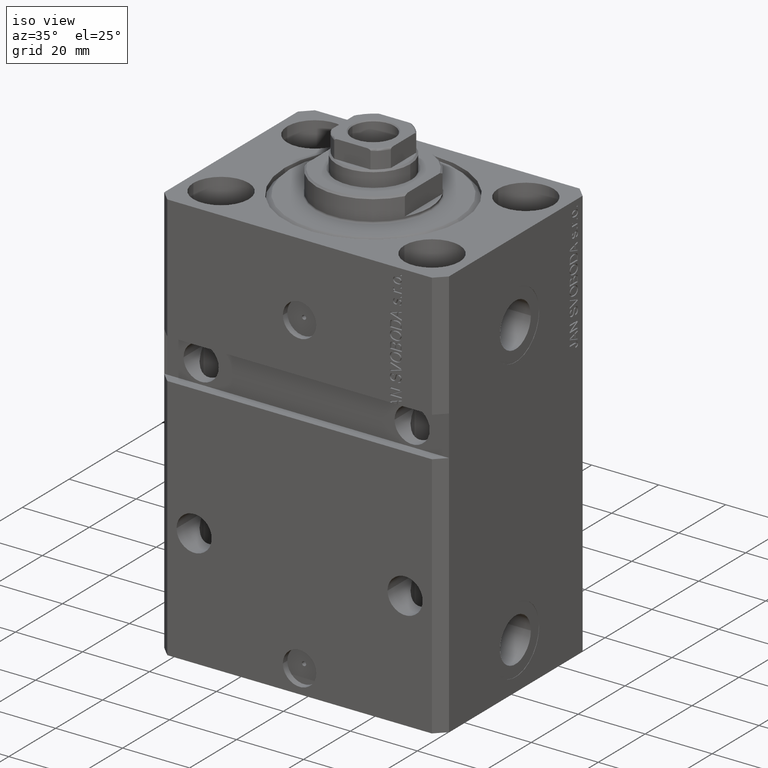
[diagram: clean part render]
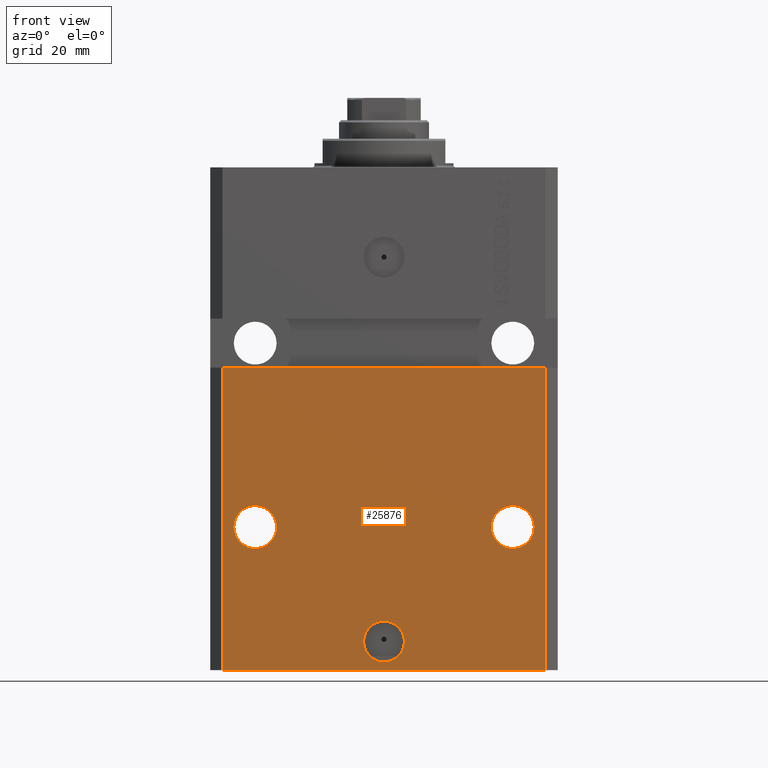
[diagram: tour spotlight — one face highlighted and labeled with its STEP entity id]
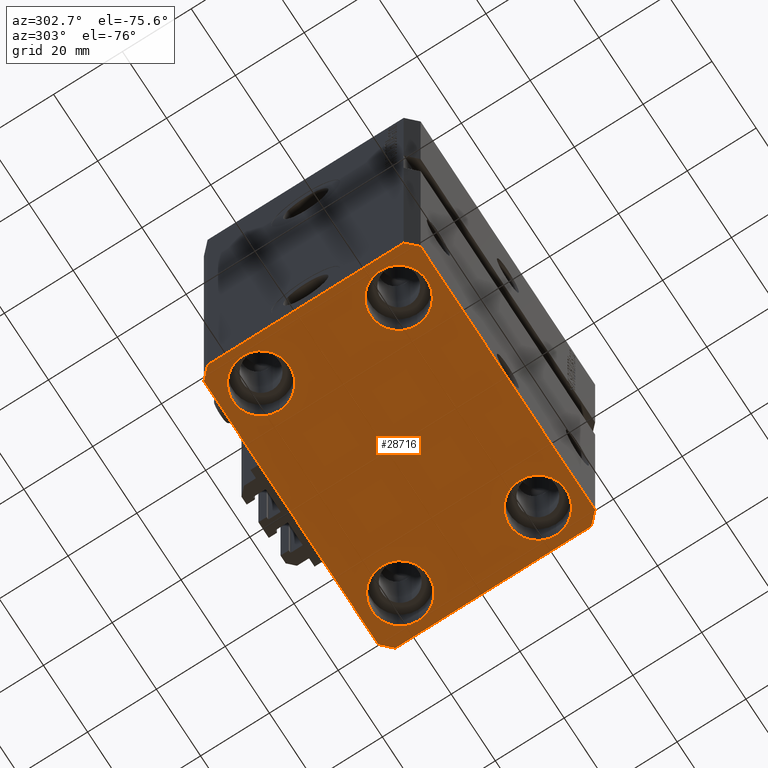
[diagram: tour spotlight — one face highlighted and labeled with its STEP entity id]
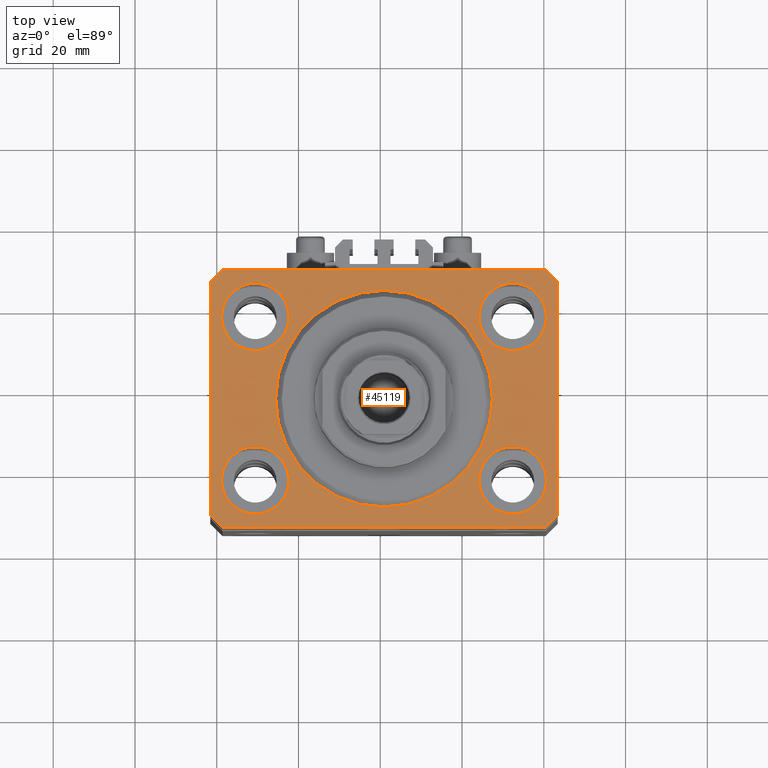
[diagram: tour spotlight — one face highlighted and labeled with its STEP entity id]
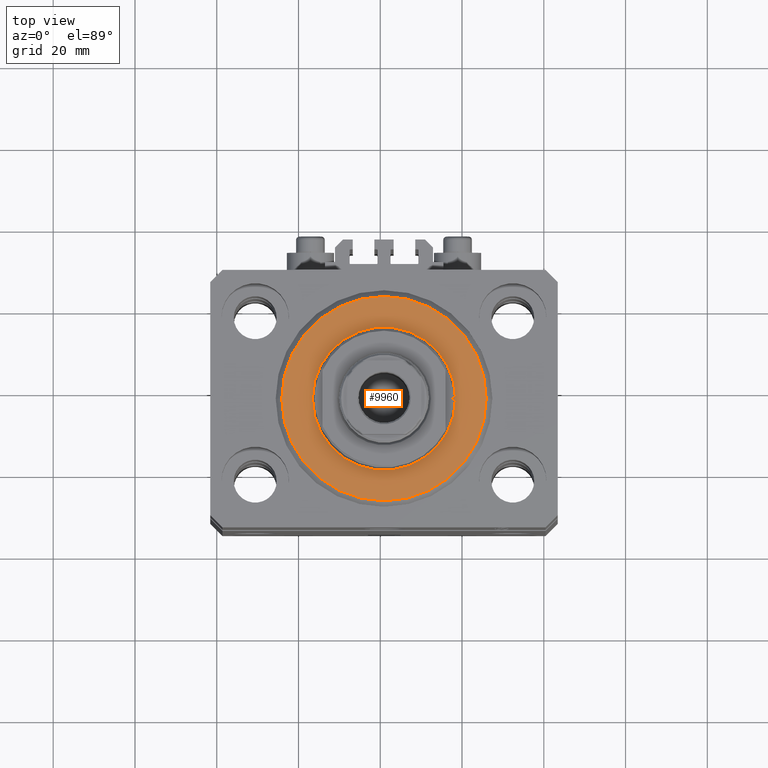
[diagram: tour spotlight — one face highlighted and labeled with its STEP entity id]
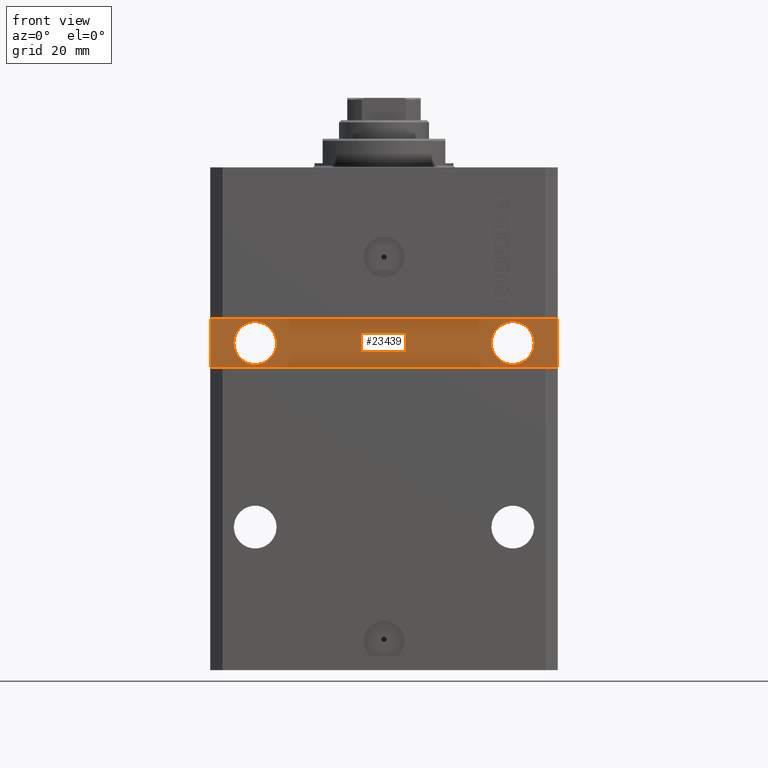
[diagram: tour spotlight — one face highlighted and labeled with its STEP entity id]
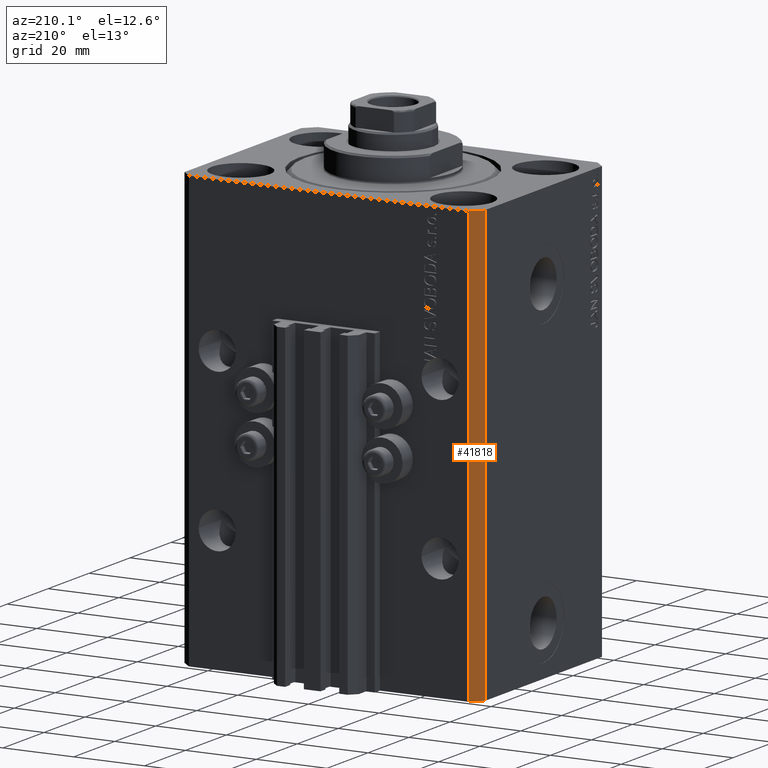
[diagram: tour spotlight — one face highlighted and labeled with its STEP entity id]
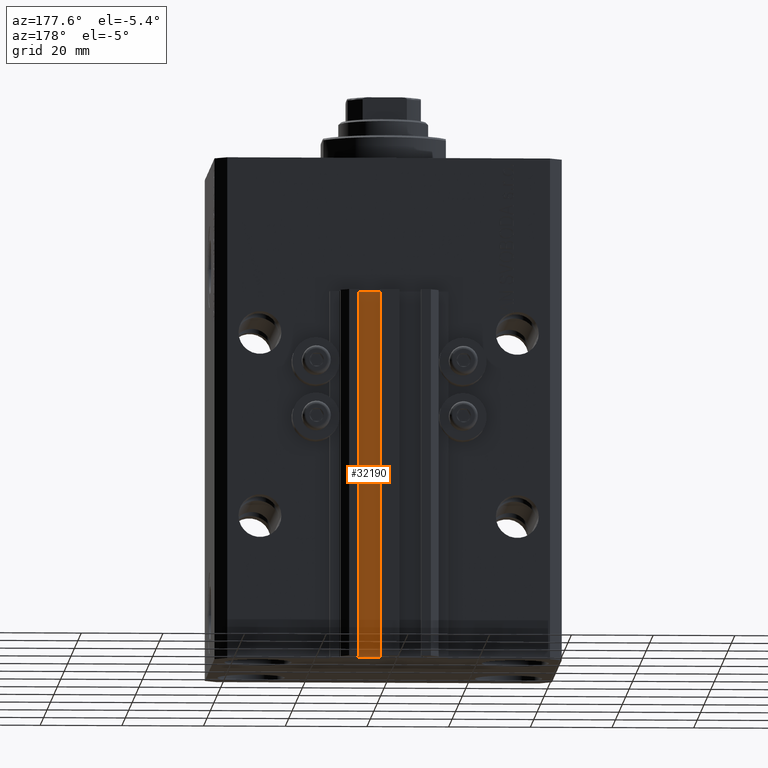
[diagram: tour spotlight — one face highlighted and labeled with its STEP entity id]
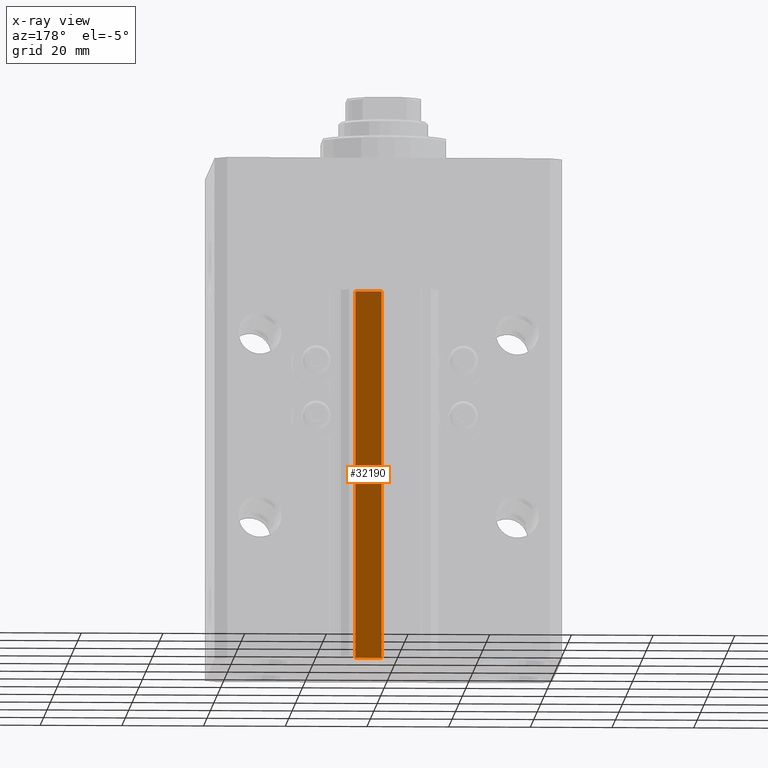
[diagram: x-ray of the same camera — body ghosted, this tour face saturated]
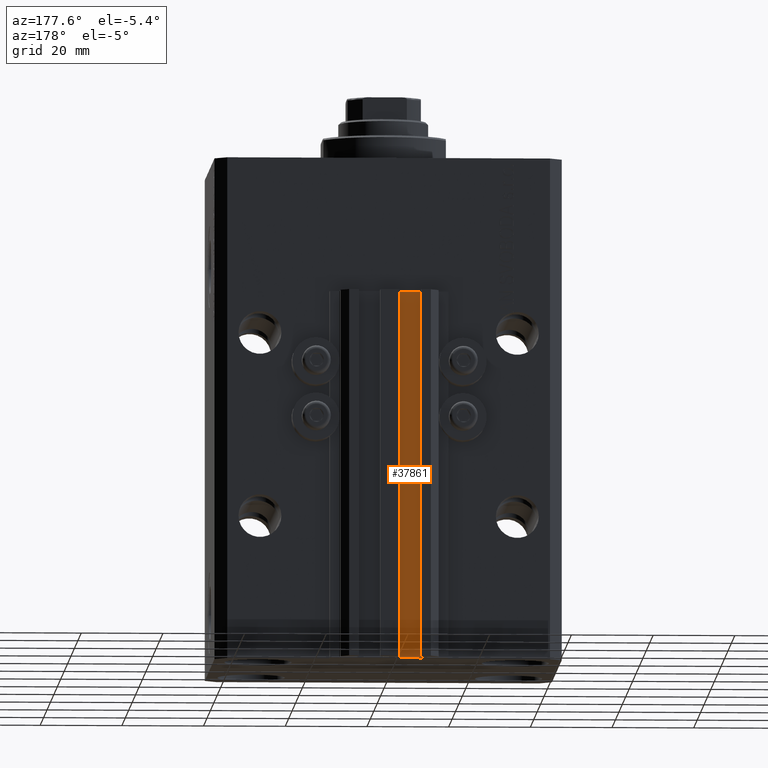
[diagram: tour spotlight — one face highlighted and labeled with its STEP entity id]
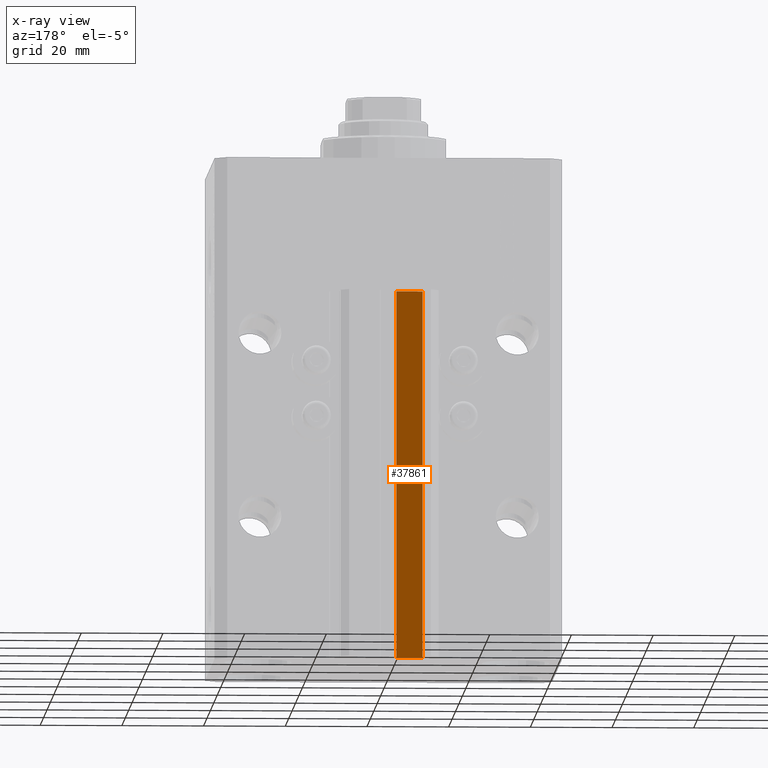
[diagram: x-ray of the same camera — body ghosted, this tour face saturated]
A machine part: a face-by-face anatomy tour. The part has 1123 B-rep faces; the first image is the clean iso view, then the 8 largest visible faces are spotlighted one at a time (largest first), each with its STEP entity span.

Face 1 — front view, entity #25876. In plain terms, the highlighted planar face has unit normal (0, -1, 0).
Definition (entity closure, byte-faithful):
#316 = CIRCLE ( 'NONE', #29434, 5.249999999999997335 ) ;
#539 = CARTESIAN_POINT ( 'NONE',  ( 31.50000000000001421, -31.49999999999999289, -88.00000000000000000 ) ) ;
#1457 = ORIENTED_EDGE ( 'NONE', *, *, #32654, .T. ) ;
#2680 = VECTOR ( 'NONE', #36437, 1000.000000000000000 ) ;
#3485 = CARTESIAN_POINT ( 'NONE',  ( 0.000000000000000000, -31.50000000000000000, -115.9999999999999858 ) ) ;
#3500 = AXIS2_PLACEMENT_3D ( 'NONE', #47993, #32035, #10376 ) ;
#3611 = ORIENTED_EDGE ( 'NONE', *, *, #16227, .T. ) ;
#3882 = EDGE_CURVE ( 'NONE', #38944, #28139, #19772, .T. ) ;
#5890 = DIRECTION ( 'NONE',  ( 0.000000000000000000, -0.000000000000000000, -1.000000000000000000 ) ) ;
#6645 = CARTESIAN_POINT ( 'NONE',  ( 26.25000000000001776, -31.49999999999999289, -88.00000000000000000 ) ) ;
#6953 = CARTESIAN_POINT ( 'NONE',  ( -39.50000000000000000, -31.50000000000000711, -48.99999999999999289 ) ) ;
#7260 = VERTEX_POINT ( 'NONE', #6645 ) ;
#7294 = ORIENTED_EDGE ( 'NONE', *, *, #13084, .F. ) ;
#7602 = CARTESIAN_POINT ( 'NONE',  ( 39.50000000000000711, -31.50000000000000000, -123.0000000000000000 ) ) ;
#8858 = FACE_BOUND ( 'NONE', #35440, .T. ) ;
#9106 = PLANE ( 'NONE',  #26933 ) ;
#9569 = AXIS2_PLACEMENT_3D ( 'NONE', #3485, #44790, #28827 ) ;
#9736 = ORIENTED_EDGE ( 'NONE', *, *, #3882, .F. ) ;
#10032 = AXIS2_PLACEMENT_3D ( 'NONE', #25529, #39801, #32917 ) ;
#10376 = DIRECTION ( 'NONE',  ( 1.000000000000000000, 0.000000000000000000, 0.000000000000000000 ) ) ;
#10498 = CARTESIAN_POINT ( 'NONE',  ( -31.50000000000001421, -31.50000000000000711, -88.00000000000000000 ) ) ;
#11007 = CARTESIAN_POINT ( 'NONE',  ( 36.75000000000001421, -31.49999999999999289, -88.00000000000000000 ) ) ;
#11204 = VERTEX_POINT ( 'NONE', #11007 ) ;
#11338 = VERTEX_POINT ( 'NONE', #45888 ) ;
#13084 = EDGE_CURVE ( 'NONE', #11204, #7260, #316, .T. ) ;
#13510 = CARTESIAN_POINT ( 'NONE',  ( -39.50000000000000711, -31.50000000000000000, -123.0000000000000000 ) ) ;
#13697 = CIRCLE ( 'NONE', #41182, 5.249999999999997335 ) ;
#13759 = FACE_BOUND ( 'NONE', #13926, .T. ) ;
#13847 = EDGE_CURVE ( 'NONE', #11338, #14540, #13697, .T. ) ;
#13926 = EDGE_LOOP ( 'NONE', ( #9736, #16623 ) ) ;
#14540 = VERTEX_POINT ( 'NONE', #46000 ) ;
#15323 = ORIENTED_EDGE ( 'NONE', *, *, #44495, .F. ) ;
#15533 = CIRCLE ( 'NONE', #10032, 5.249999999999997335 ) ;
#15615 = LINE ( 'NONE', #45605, #21164 ) ;
#16227 = EDGE_CURVE ( 'NONE', #32337, #20437, #33457, .T. ) ;
#16623 = ORIENTED_EDGE ( 'NONE', *, *, #33355, .F. ) ;
#17323 = CARTESIAN_POINT ( 'NONE',  ( -39.50000000000000711, -31.50000000000000000, -123.0000000000000000 ) ) ;
#17818 = CARTESIAN_POINT ( 'NONE',  ( -5.000000000000006217, -31.50000000000000000, -115.9999999999999858 ) ) ;
#17882 = CIRCLE ( 'NONE', #34376, 5.249999999999997335 ) ;
#17894 = EDGE_CURVE ( 'NONE', #32337, #23889, #15615, .T. ) ;
#19772 = CIRCLE ( 'NONE', #9569, 5.000000000000006217 ) ;
#20082 = ORIENTED_EDGE ( 'NONE', *, *, #33070, .F. ) ;
#20437 = VERTEX_POINT ( 'NONE', #7602 ) ;
#21164 = VECTOR ( 'NONE', #45130, 1000.000000000000000 ) ;
#21247 = DIRECTION ( 'NONE',  ( 1.000000000000000000, 1.632680918566406300E-16, 1.632680918566406300E-16 ) ) ;
#21544 = VECTOR ( 'NONE', #21247, 1000.000000000000000 ) ;
#22686 = CARTESIAN_POINT ( 'NONE',  ( -31.50000000000001421, -31.50000000000000711, -88.00000000000000000 ) ) ;
#23889 = VERTEX_POINT ( 'NONE', #6953 ) ;
#25482 = DIRECTION ( 'NONE',  ( -1.000000000000000000, 0.000000000000000000, 0.000000000000000000 ) ) ;
#25529 = CARTESIAN_POINT ( 'NONE',  ( 31.50000000000001421, -31.49999999999999289, -88.00000000000000000 ) ) ;
#25703 = ORIENTED_EDGE ( 'NONE', *, *, #17894, .F. ) ;
#25876 = ADVANCED_FACE ( 'NONE', ( #13759, #8858, #43026, #31487 ), #9106, .T. ) ;
#26132 = ORIENTED_EDGE ( 'NONE', *, *, #44026, .F. ) ;
#26933 = AXIS2_PLACEMENT_3D ( 'NONE', #13510, #46466, #5890 ) ;
#27567 = DIRECTION ( 'NONE',  ( 1.000000000000000000, 0.000000000000000000, 0.000000000000000000 ) ) ;
#28066 = EDGE_LOOP ( 'NONE', ( #20082, #25703, #3611, #1457 ) ) ;
#28139 = VERTEX_POINT ( 'NONE', #17818 ) ;
#28827 = DIRECTION ( 'NONE',  ( 1.000000000000000000, 0.000000000000000000, 0.000000000000000000 ) ) ;
#28874 = CARTESIAN_POINT ( 'NONE',  ( -42.50000000000000000, -31.50000000000000711, -48.99999999999999289 ) ) ;
#29178 = DIRECTION ( 'NONE',  ( 1.176083712526788232E-16, -1.000000000000000000, 0.000000000000000000 ) ) ;
#29434 = AXIS2_PLACEMENT_3D ( 'NONE', #539, #45774, #27567 ) ;
#30803 = DIRECTION ( 'NONE',  ( 1.176083712526788232E-16, -1.000000000000000000, 0.000000000000000000 ) ) ;
#31034 = CIRCLE ( 'NONE', #3500, 5.000000000000006217 ) ;
#31487 = FACE_OUTER_BOUND ( 'NONE', #28066, .T. ) ;
#31785 = CARTESIAN_POINT ( 'NONE',  ( 39.50000000000000711, -31.50000000000000000, -123.0000000000000000 ) ) ;
#32035 = DIRECTION ( 'NONE',  ( 1.176083712526788232E-16, -1.000000000000000000, 0.000000000000000000 ) ) ;
#32318 = LINE ( 'NONE', #28874, #21544 ) ;
#32337 = VERTEX_POINT ( 'NONE', #17323 ) ;
#32654 = EDGE_CURVE ( 'NONE', #20437, #36049, #36190, .T. ) ;
#32917 = DIRECTION ( 'NONE',  ( 1.000000000000000000, 0.000000000000000000, 0.000000000000000000 ) ) ;
#33070 = EDGE_CURVE ( 'NONE', #23889, #36049, #32318, .T. ) ;
#33355 = EDGE_CURVE ( 'NONE', #28139, #38944, #31034, .T. ) ;
#33457 = LINE ( 'NONE', #36661, #39051 ) ;
#34376 = AXIS2_PLACEMENT_3D ( 'NONE', #22686, #30803, #41379 ) ;
#34413 = CARTESIAN_POINT ( 'NONE',  ( 5.000000000000006217, -31.50000000000000000, -115.9999999999999858 ) ) ;
#35440 = EDGE_LOOP ( 'NONE', ( #7294, #15323 ) ) ;
#36049 = VERTEX_POINT ( 'NONE', #42068 ) ;
#36190 = LINE ( 'NONE', #31785, #2680 ) ;
#36437 = DIRECTION ( 'NONE',  ( 0.000000000000000000, 0.000000000000000000, 1.000000000000000000 ) ) ;
#36661 = CARTESIAN_POINT ( 'NONE',  ( -39.50000000000000711, -31.50000000000000000, -123.0000000000000000 ) ) ;
#38944 = VERTEX_POINT ( 'NONE', #34413 ) ;
#39051 = VECTOR ( 'NONE', #39857, 1000.000000000000000 ) ;
#39801 = DIRECTION ( 'NONE',  ( 1.176083712526788232E-16, -1.000000000000000000, 0.000000000000000000 ) ) ;
#39857 = DIRECTION ( 'NONE',  ( 1.000000000000000000, 0.000000000000000000, 0.000000000000000000 ) ) ;
#40820 = EDGE_LOOP ( 'NONE', ( #46875, #26132 ) ) ;
#41182 = AXIS2_PLACEMENT_3D ( 'NONE', #10498, #29178, #25482 ) ;
#41379 = DIRECTION ( 'NONE',  ( -1.000000000000000000, 0.000000000000000000, 0.000000000000000000 ) ) ;
#42068 = CARTESIAN_POINT ( 'NONE',  ( 39.50000000000001421, -31.49999999999999289, -48.99999999999997868 ) ) ;
#43026 = FACE_BOUND ( 'NONE', #40820, .T. ) ;
#44026 = EDGE_CURVE ( 'NONE', #14540, #11338, #17882, .T. ) ;
#44495 = EDGE_CURVE ( 'NONE', #7260, #11204, #15533, .T. ) ;
#44790 = DIRECTION ( 'NONE',  ( 1.176083712526788232E-16, -1.000000000000000000, 0.000000000000000000 ) ) ;
#45130 = DIRECTION ( 'NONE',  ( 0.000000000000000000, 0.000000000000000000, 1.000000000000000000 ) ) ;
#45605 = CARTESIAN_POINT ( 'NONE',  ( -39.50000000000000711, -31.50000000000000000, -123.0000000000000000 ) ) ;
#45774 = DIRECTION ( 'NONE',  ( 1.176083712526788232E-16, -1.000000000000000000, 0.000000000000000000 ) ) ;
#45888 = CARTESIAN_POINT ( 'NONE',  ( -26.25000000000001776, -31.50000000000000711, -88.00000000000000000 ) ) ;
#46000 = CARTESIAN_POINT ( 'NONE',  ( -36.75000000000001421, -31.50000000000000711, -88.00000000000000000 ) ) ;
#46466 = DIRECTION ( 'NONE',  ( 0.000000000000000000, -1.000000000000000000, 0.000000000000000000 ) ) ;
#46875 = ORIENTED_EDGE ( 'NONE', *, *, #13847, .F. ) ;
#47993 = CARTESIAN_POINT ( 'NONE',  ( 0.000000000000000000, -31.50000000000000000, -115.9999999999999858 ) ) ;

Face 2 — auxiliary view, entity #28716. In plain terms, the highlighted planar face has unit normal (0, 0, 1).
Definition (entity closure, byte-faithful):
#105 = ORIENTED_EDGE ( 'NONE', *, *, #21546, .T. ) ;
#364 = AXIS2_PLACEMENT_3D ( 'NONE', #43693, #17383, #28206 ) ;
#683 = EDGE_CURVE ( 'NONE', #9111, #38087, #7865, .T. ) ;
#831 = CARTESIAN_POINT ( 'NONE',  ( 42.50000000000000711, -28.50000000000000355, -123.0000000000000000 ) ) ;
#919 = CARTESIAN_POINT ( 'NONE',  ( 39.74999999999999289, -20.00000000000000000, -123.0000000000000000 ) ) ;
#1422 = DIRECTION ( 'NONE',  ( 0.7071067811865483499, 0.7071067811865466846, 0.000000000000000000 ) ) ;
#1620 = EDGE_CURVE ( 'NONE', #38759, #45308, #7136, .T. ) ;
#1943 = ORIENTED_EDGE ( 'NONE', *, *, #1620, .T. ) ;
#3315 = ORIENTED_EDGE ( 'NONE', *, *, #26187, .T. ) ;
#3319 = VECTOR ( 'NONE', #34721, 1000.000000000000000 ) ;
#4660 = ORIENTED_EDGE ( 'NONE', *, *, #39756, .F. ) ;
#4756 = DIRECTION ( 'NONE',  ( -0.000000000000000000, -0.000000000000000000, 1.000000000000000000 ) ) ;
#5552 = DIRECTION ( 'NONE',  ( -1.000000000000000000, 0.000000000000000000, 0.000000000000000000 ) ) ;
#5947 = LINE ( 'NONE', #48418, #14888 ) ;
#6394 = ORIENTED_EDGE ( 'NONE', *, *, #23105, .T. ) ;
#7080 = LINE ( 'NONE', #26491, #43786 ) ;
#7097 = CARTESIAN_POINT ( 'NONE',  ( -42.50000000000000000, -28.50000000000000000, -123.0000000000000000 ) ) ;
#7136 = CIRCLE ( 'NONE', #18894, 8.250000000000000000 ) ;
#7602 = CARTESIAN_POINT ( 'NONE',  ( 39.50000000000000711, -31.50000000000000000, -123.0000000000000000 ) ) ;
#7860 = DIRECTION ( 'NONE',  ( 1.000000000000000000, 0.000000000000000000, 0.000000000000000000 ) ) ;
#7865 = CIRCLE ( 'NONE', #14941, 8.250000000000000000 ) ;
#8202 = CARTESIAN_POINT ( 'NONE',  ( -31.50000000000000000, -20.00000000000000000, -123.0000000000000000 ) ) ;
#8354 = DIRECTION ( 'NONE',  ( -0.000000000000000000, -0.000000000000000000, 1.000000000000000000 ) ) ;
#8604 = CARTESIAN_POINT ( 'NONE',  ( -31.50000000000000000, 20.00000000000000000, -123.0000000000000000 ) ) ;
#8977 = EDGE_CURVE ( 'NONE', #24828, #48107, #47432, .T. ) ;
#9098 = ORIENTED_EDGE ( 'NONE', *, *, #18412, .F. ) ;
#9111 = VERTEX_POINT ( 'NONE', #46945 ) ;
#9611 = CARTESIAN_POINT ( 'NONE',  ( 0.000000000000000000, 0.000000000000000000, -123.0000000000000000 ) ) ;
#10680 = EDGE_LOOP ( 'NONE', ( #105, #3315 ) ) ;
#11135 = CIRCLE ( 'NONE', #22110, 8.250000000000000000 ) ;
#11862 = CARTESIAN_POINT ( 'NONE',  ( -42.50000000000000000, 28.50000000000000000, -123.0000000000000000 ) ) ;
#12160 = DIRECTION ( 'NONE',  ( 8.886653596232072440E-15, 1.000000000000000000, 0.000000000000000000 ) ) ;
#12566 = VERTEX_POINT ( 'NONE', #47596 ) ;
#13017 = ORIENTED_EDGE ( 'NONE', *, *, #38715, .T. ) ;
#13055 = FACE_BOUND ( 'NONE', #16153, .T. ) ;
#13481 = LINE ( 'NONE', #16687, #37164 ) ;
#13781 = DIRECTION ( 'NONE',  ( 1.000000000000000000, 0.000000000000000000, -0.000000000000000000 ) ) ;
#14275 = CARTESIAN_POINT ( 'NONE',  ( -23.25000000000000000, 20.00000000000000000, -123.0000000000000000 ) ) ;
#14485 = CARTESIAN_POINT ( 'NONE',  ( -39.75000000000000000, 20.00000000000000000, -123.0000000000000000 ) ) ;
#14733 = DIRECTION ( 'NONE',  ( -0.7071067811865471286, -0.7071067811865479058, 0.000000000000000000 ) ) ;
#14888 = VECTOR ( 'NONE', #14733, 1000.000000000000000 ) ;
#14941 = AXIS2_PLACEMENT_3D ( 'NONE', #8202, #4756, #19518 ) ;
#15118 = ORIENTED_EDGE ( 'NONE', *, *, #16227, .F. ) ;
#16153 = EDGE_LOOP ( 'NONE', ( #6394, #18048 ) ) ;
#16227 = EDGE_CURVE ( 'NONE', #32337, #20437, #33457, .T. ) ;
#16541 = CARTESIAN_POINT ( 'NONE',  ( 42.50000000000000711, -28.50000000000000355, -123.0000000000000000 ) ) ;
#16687 = CARTESIAN_POINT ( 'NONE',  ( 42.50000000000051870, 28.49999999999995381, -123.0000000000000000 ) ) ;
#17229 = DIRECTION ( 'NONE',  ( 1.000000000000000000, 0.000000000000000000, 0.000000000000000000 ) ) ;
#17294 = CARTESIAN_POINT ( 'NONE',  ( 39.50000000000056843, 31.50000000000000000, -123.0000000000000000 ) ) ;
#17323 = CARTESIAN_POINT ( 'NONE',  ( -39.50000000000000711, -31.50000000000000000, -123.0000000000000000 ) ) ;
#17348 = CARTESIAN_POINT ( 'NONE',  ( 39.50000000000056843, 31.50000000000000000, -123.0000000000000000 ) ) ;
#17383 = DIRECTION ( 'NONE',  ( -0.000000000000000000, -0.000000000000000000, 1.000000000000000000 ) ) ;
#17432 = DIRECTION ( 'NONE',  ( 1.000000000000000000, 0.000000000000000000, 0.000000000000000000 ) ) ;
#17552 = EDGE_LOOP ( 'NONE', ( #47222, #31882, #45355, #25535, #15118, #4660, #29304, #9098 ) ) ;
#18048 = ORIENTED_EDGE ( 'NONE', *, *, #683, .T. ) ;
#18412 = EDGE_CURVE ( 'NONE', #34586, #19724, #5947, .T. ) ;
#18894 = AXIS2_PLACEMENT_3D ( 'NONE', #8604, #38117, #17432 ) ;
#19143 = DIRECTION ( 'NONE',  ( 1.000000000000000000, 0.000000000000000000, 0.000000000000000000 ) ) ;
#19216 = VERTEX_POINT ( 'NONE', #16541 ) ;
#19518 = DIRECTION ( 'NONE',  ( 1.000000000000000000, 0.000000000000000000, 0.000000000000000000 ) ) ;
#19724 = VERTEX_POINT ( 'NONE', #30702 ) ;
#20437 = VERTEX_POINT ( 'NONE', #7602 ) ;
#20570 = EDGE_CURVE ( 'NONE', #20437, #19216, #38322, .T. ) ;
#21546 = EDGE_CURVE ( 'NONE', #12566, #26183, #38524, .T. ) ;
#22006 = VECTOR ( 'NONE', #1422, 1000.000000000000000 ) ;
#22110 = AXIS2_PLACEMENT_3D ( 'NONE', #41363, #33505, #48516 ) ;
#22587 = DIRECTION ( 'NONE',  ( 1.000000000000000000, 0.000000000000000000, 0.000000000000000000 ) ) ;
#23079 = CARTESIAN_POINT ( 'NONE',  ( -39.50000000000000711, 31.50000000000000000, -123.0000000000000000 ) ) ;
#23105 = EDGE_CURVE ( 'NONE', #38087, #9111, #11135, .T. ) ;
#23327 = CARTESIAN_POINT ( 'NONE',  ( 39.50000000000000711, -31.50000000000000000, -123.0000000000000000 ) ) ;
#23655 = EDGE_CURVE ( 'NONE', #19216, #24695, #34527, .T. ) ;
#23699 = VERTEX_POINT ( 'NONE', #17294 ) ;
#23741 = AXIS2_PLACEMENT_3D ( 'NONE', #9611, #47215, #13781 ) ;
#23871 = AXIS2_PLACEMENT_3D ( 'NONE', #45246, #8354, #7860 ) ;
#23949 = EDGE_CURVE ( 'NONE', #19724, #26071, #41374, .T. ) ;
#24348 = FACE_BOUND ( 'NONE', #29252, .T. ) ;
#24379 = AXIS2_PLACEMENT_3D ( 'NONE', #41758, #38555, #19143 ) ;
#24695 = VERTEX_POINT ( 'NONE', #42836 ) ;
#24828 = VERTEX_POINT ( 'NONE', #43801 ) ;
#24841 = FACE_BOUND ( 'NONE', #10680, .T. ) ;
#25535 = ORIENTED_EDGE ( 'NONE', *, *, #20570, .F. ) ;
#26071 = VERTEX_POINT ( 'NONE', #7097 ) ;
#26183 = VERTEX_POINT ( 'NONE', #919 ) ;
#26187 = EDGE_CURVE ( 'NONE', #26183, #12566, #47339, .T. ) ;
#26491 = CARTESIAN_POINT ( 'NONE',  ( -42.50000000000000000, -28.50000000000000000, -123.0000000000000000 ) ) ;
#27993 = DIRECTION ( 'NONE',  ( -0.7071067811865356934, 0.7071067811865594521, 0.000000000000000000 ) ) ;
#28042 = FACE_BOUND ( 'NONE', #32595, .T. ) ;
#28206 = DIRECTION ( 'NONE',  ( 1.000000000000000000, 0.000000000000000000, 0.000000000000000000 ) ) ;
#28529 = PLANE ( 'NONE',  #23741 ) ;
#28716 = ADVANCED_FACE ( 'NONE', ( #13055, #24841, #28042, #24348, #39111 ), #28529, .F. ) ;
#29252 = EDGE_LOOP ( 'NONE', ( #13017, #1943 ) ) ;
#29304 = ORIENTED_EDGE ( 'NONE', *, *, #23949, .F. ) ;
#29313 = AXIS2_PLACEMENT_3D ( 'NONE', #38541, #41744, #22587 ) ;
#29950 = EDGE_CURVE ( 'NONE', #24695, #23699, #13481, .T. ) ;
#30702 = CARTESIAN_POINT ( 'NONE',  ( -42.50000000000000000, 28.50000000000000000, -123.0000000000000000 ) ) ;
#31882 = ORIENTED_EDGE ( 'NONE', *, *, #29950, .F. ) ;
#32002 = CARTESIAN_POINT ( 'NONE',  ( -31.50000000000000000, 20.00000000000000000, -123.0000000000000000 ) ) ;
#32337 = VERTEX_POINT ( 'NONE', #17323 ) ;
#32562 = CIRCLE ( 'NONE', #364, 8.249999999999992895 ) ;
#32595 = EDGE_LOOP ( 'NONE', ( #45499, #39822 ) ) ;
#32663 = VECTOR ( 'NONE', #5552, 1000.000000000000000 ) ;
#33457 = LINE ( 'NONE', #36661, #39051 ) ;
#33505 = DIRECTION ( 'NONE',  ( -0.000000000000000000, -0.000000000000000000, 1.000000000000000000 ) ) ;
#33949 = EDGE_CURVE ( 'NONE', #48107, #24828, #32562, .T. ) ;
#34527 = LINE ( 'NONE', #831, #47234 ) ;
#34586 = VERTEX_POINT ( 'NONE', #23079 ) ;
#34721 = DIRECTION ( 'NONE',  ( 0.000000000000000000, -1.000000000000000000, 0.000000000000000000 ) ) ;
#36661 = CARTESIAN_POINT ( 'NONE',  ( -39.50000000000000711, -31.50000000000000000, -123.0000000000000000 ) ) ;
#37164 = VECTOR ( 'NONE', #27993, 1000.000000000000114 ) ;
#38087 = VERTEX_POINT ( 'NONE', #44388 ) ;
#38117 = DIRECTION ( 'NONE',  ( -0.000000000000000000, -0.000000000000000000, 1.000000000000000000 ) ) ;
#38322 = LINE ( 'NONE', #23327, #22006 ) ;
#38524 = CIRCLE ( 'NONE', #24379, 8.249999999999992895 ) ;
#38541 = CARTESIAN_POINT ( 'NONE',  ( 31.50000000000000000, -20.00000000000000000, -123.0000000000000000 ) ) ;
#38555 = DIRECTION ( 'NONE',  ( -0.000000000000000000, -0.000000000000000000, 1.000000000000000000 ) ) ;
#38715 = EDGE_CURVE ( 'NONE', #45308, #38759, #42948, .T. ) ;
#38759 = VERTEX_POINT ( 'NONE', #14275 ) ;
#39051 = VECTOR ( 'NONE', #39857, 1000.000000000000000 ) ;
#39111 = FACE_OUTER_BOUND ( 'NONE', #17552, .T. ) ;
#39605 = DIRECTION ( 'NONE',  ( -0.000000000000000000, -0.000000000000000000, 1.000000000000000000 ) ) ;
#39756 = EDGE_CURVE ( 'NONE', #26071, #32337, #7080, .T. ) ;
#39822 = ORIENTED_EDGE ( 'NONE', *, *, #8977, .T. ) ;
#39857 = DIRECTION ( 'NONE',  ( 1.000000000000000000, 0.000000000000000000, 0.000000000000000000 ) ) ;
#40781 = DIRECTION ( 'NONE',  ( 0.7071067811865471286, -0.7071067811865479058, 0.000000000000000000 ) ) ;
#41363 = CARTESIAN_POINT ( 'NONE',  ( -31.50000000000000000, -20.00000000000000000, -123.0000000000000000 ) ) ;
#41374 = LINE ( 'NONE', #11862, #3319 ) ;
#41744 = DIRECTION ( 'NONE',  ( -0.000000000000000000, -0.000000000000000000, 1.000000000000000000 ) ) ;
#41758 = CARTESIAN_POINT ( 'NONE',  ( 31.50000000000000000, -20.00000000000000000, -123.0000000000000000 ) ) ;
#42174 = AXIS2_PLACEMENT_3D ( 'NONE', #32002, #39605, #17229 ) ;
#42836 = CARTESIAN_POINT ( 'NONE',  ( 42.50000000000051870, 28.49999999999995381, -123.0000000000000000 ) ) ;
#42948 = CIRCLE ( 'NONE', #42174, 8.250000000000000000 ) ;
#43693 = CARTESIAN_POINT ( 'NONE',  ( 31.50000000000000000, 20.00000000000001066, -123.0000000000000000 ) ) ;
#43786 = VECTOR ( 'NONE', #40781, 1000.000000000000000 ) ;
#43801 = CARTESIAN_POINT ( 'NONE',  ( 39.74999999999999289, 20.00000000000001066, -123.0000000000000000 ) ) ;
#44139 = CARTESIAN_POINT ( 'NONE',  ( 23.25000000000000355, 20.00000000000001066, -123.0000000000000000 ) ) ;
#44388 = CARTESIAN_POINT ( 'NONE',  ( -39.75000000000000000, -20.00000000000000000, -123.0000000000000000 ) ) ;
#45246 = CARTESIAN_POINT ( 'NONE',  ( 31.50000000000000000, 20.00000000000001066, -123.0000000000000000 ) ) ;
#45308 = VERTEX_POINT ( 'NONE', #14485 ) ;
#45355 = ORIENTED_EDGE ( 'NONE', *, *, #23655, .F. ) ;
#45499 = ORIENTED_EDGE ( 'NONE', *, *, #33949, .T. ) ;
#46372 = LINE ( 'NONE', #17348, #32663 ) ;
#46945 = CARTESIAN_POINT ( 'NONE',  ( -23.25000000000000000, -20.00000000000000000, -123.0000000000000000 ) ) ;
#47215 = DIRECTION ( 'NONE',  ( 0.000000000000000000, 0.000000000000000000, 1.000000000000000000 ) ) ;
#47222 = ORIENTED_EDGE ( 'NONE', *, *, #48008, .F. ) ;
#47234 = VECTOR ( 'NONE', #12160, 1000.000000000000000 ) ;
#47339 = CIRCLE ( 'NONE', #29313, 8.249999999999992895 ) ;
#47432 = CIRCLE ( 'NONE', #23871, 8.249999999999992895 ) ;
#47596 = CARTESIAN_POINT ( 'NONE',  ( 23.25000000000000355, -20.00000000000000000, -123.0000000000000000 ) ) ;
#48008 = EDGE_CURVE ( 'NONE', #23699, #34586, #46372, .T. ) ;
#48107 = VERTEX_POINT ( 'NONE', #44139 ) ;
#48418 = CARTESIAN_POINT ( 'NONE',  ( -39.50000000000000711, 31.50000000000000000, -123.0000000000000000 ) ) ;
#48516 = DIRECTION ( 'NONE',  ( 1.000000000000000000, 0.000000000000000000, 0.000000000000000000 ) ) ;

Face 3 — top view, entity #45119. In plain terms, the highlighted planar face has unit normal (0, 0, 1).
Definition (entity closure, byte-faithful):
#74 = EDGE_CURVE ( 'NONE', #17597, #37135, #10580, .T. ) ;
#255 = ORIENTED_EDGE ( 'NONE', *, *, #42950, .F. ) ;
#302 = AXIS2_PLACEMENT_3D ( 'NONE', #13575, #27838, #32264 ) ;
#463 = AXIS2_PLACEMENT_3D ( 'NONE', #44332, #25397, #29088 ) ;
#566 = CIRCLE ( 'NONE', #9998, 8.249999999999992895 ) ;
#1063 = CIRCLE ( 'NONE', #302, 8.250000000000000000 ) ;
#1085 = AXIS2_PLACEMENT_3D ( 'NONE', #29139, #29642, #48566 ) ;
#1395 = LINE ( 'NONE', #45912, #27435 ) ;
#1775 = EDGE_CURVE ( 'NONE', #27689, #17597, #32684, .T. ) ;
#1861 = EDGE_LOOP ( 'NONE', ( #45237, #38830 ) ) ;
#1867 = VERTEX_POINT ( 'NONE', #7090 ) ;
#2484 = ORIENTED_EDGE ( 'NONE', *, *, #17625, .T. ) ;
#2669 = DIRECTION ( 'NONE',  ( 1.000000000000000000, 0.000000000000000000, 0.000000000000000000 ) ) ;
#2713 = ORIENTED_EDGE ( 'NONE', *, *, #31490, .F. ) ;
#2775 = ORIENTED_EDGE ( 'NONE', *, *, #1775, .T. ) ;
#3063 = LINE ( 'NONE', #32835, #13854 ) ;
#3135 = VECTOR ( 'NONE', #37834, 1000.000000000000114 ) ;
#3161 = EDGE_LOOP ( 'NONE', ( #43542, #2484, #32852, #7691, #14238, #11368, #2775, #19115 ) ) ;
#3752 = EDGE_CURVE ( 'NONE', #40108, #37989, #47218, .T. ) ;
#3777 = CARTESIAN_POINT ( 'NONE',  ( 23.25000000000000355, -20.00000000000000000, 0.000000000000000000 ) ) ;
#4429 = FACE_BOUND ( 'NONE', #46049, .T. ) ;
#5052 = VERTEX_POINT ( 'NONE', #45207 ) ;
#5717 = CARTESIAN_POINT ( 'NONE',  ( 0.000000000000000000, 0.000000000000000000, 0.000000000000000000 ) ) ;
#6258 = CARTESIAN_POINT ( 'NONE',  ( -23.25000000000000000, -20.00000000000000000, 0.000000000000000000 ) ) ;
#6509 = VECTOR ( 'NONE', #46978, 1000.000000000000000 ) ;
#6568 = CIRCLE ( 'NONE', #1085, 8.249999999999992895 ) ;
#6780 = CARTESIAN_POINT ( 'NONE',  ( -26.50000000000000355, 3.245314017740486554E-15, 0.000000000000000000 ) ) ;
#6899 = AXIS2_PLACEMENT_3D ( 'NONE', #7680, #21958, #33980 ) ;
#6924 = ORIENTED_EDGE ( 'NONE', *, *, #3752, .F. ) ;
#7087 = CARTESIAN_POINT ( 'NONE',  ( -31.50000000000000000, -20.00000000000000000, 0.000000000000000000 ) ) ;
#7090 = CARTESIAN_POINT ( 'NONE',  ( -39.75000000000000000, 20.00000000000000000, 0.000000000000000000 ) ) ;
#7215 = ORIENTED_EDGE ( 'NONE', *, *, #45276, .F. ) ;
#7466 = CARTESIAN_POINT ( 'NONE',  ( -39.50000000000000711, 31.50000000000000000, 0.000000000000000000 ) ) ;
#7570 = EDGE_CURVE ( 'NONE', #19784, #18064, #15983, .T. ) ;
#7639 = DIRECTION ( 'NONE',  ( 0.000000000000000000, 0.000000000000000000, 1.000000000000000000 ) ) ;
#7680 = CARTESIAN_POINT ( 'NONE',  ( -31.50000000000000000, 20.00000000000000000, 0.000000000000000000 ) ) ;
#7691 = ORIENTED_EDGE ( 'NONE', *, *, #31173, .T. ) ;
#7966 = DIRECTION ( 'NONE',  ( 1.000000000000000000, 0.000000000000000000, 0.000000000000000000 ) ) ;
#8180 = CIRCLE ( 'NONE', #30214, 8.250000000000000000 ) ;
#8464 = CARTESIAN_POINT ( 'NONE',  ( 31.50000000000000000, 20.00000000000001066, 0.000000000000000000 ) ) ;
#8974 = AXIS2_PLACEMENT_3D ( 'NONE', #45984, #20170, #22872 ) ;
#9064 = CARTESIAN_POINT ( 'NONE',  ( 39.50000000000056843, 31.50000000000000000, 0.000000000000000000 ) ) ;
#9306 = CARTESIAN_POINT ( 'NONE',  ( 42.50000000000000711, -28.50000000000000355, 0.000000000000000000 ) ) ;
#9998 = AXIS2_PLACEMENT_3D ( 'NONE', #48220, #37387, #22387 ) ;
#10071 = VERTEX_POINT ( 'NONE', #20951 ) ;
#10076 = LINE ( 'NONE', #36375, #17567 ) ;
#10338 = AXIS2_PLACEMENT_3D ( 'NONE', #5717, #16310, #43578 ) ;
#10580 = LINE ( 'NONE', #30484, #3135 ) ;
#11368 = ORIENTED_EDGE ( 'NONE', *, *, #29013, .T. ) ;
#11520 = EDGE_CURVE ( 'NONE', #19932, #30460, #6568, .T. ) ;
#12713 = CARTESIAN_POINT ( 'NONE',  ( 42.50000000000051870, 28.49999999999995381, 0.000000000000000000 ) ) ;
#13056 = LINE ( 'NONE', #28043, #22839 ) ;
#13575 = CARTESIAN_POINT ( 'NONE',  ( -31.50000000000000000, -20.00000000000000000, 0.000000000000000000 ) ) ;
#13854 = VECTOR ( 'NONE', #14139, 1000.000000000000000 ) ;
#14139 = DIRECTION ( 'NONE',  ( 0.000000000000000000, -1.000000000000000000, 0.000000000000000000 ) ) ;
#14157 = EDGE_LOOP ( 'NONE', ( #46270, #19928 ) ) ;
#14238 = ORIENTED_EDGE ( 'NONE', *, *, #28754, .T. ) ;
#14286 = ORIENTED_EDGE ( 'NONE', *, *, #48436, .F. ) ;
#15500 = FACE_BOUND ( 'NONE', #14157, .T. ) ;
#15983 = CIRCLE ( 'NONE', #43460, 8.249999999999992895 ) ;
#16310 = DIRECTION ( 'NONE',  ( 0.000000000000000000, 0.000000000000000000, 1.000000000000000000 ) ) ;
#16621 = CARTESIAN_POINT ( 'NONE',  ( 26.50000000000000355, 0.000000000000000000, 0.000000000000000000 ) ) ;
#16642 = DIRECTION ( 'NONE',  ( -0.7071067811865471286, -0.7071067811865479058, 0.000000000000000000 ) ) ;
#17567 = VECTOR ( 'NONE', #40055, 1000.000000000000000 ) ;
#17597 = VERTEX_POINT ( 'NONE', #12713 ) ;
#17625 = EDGE_CURVE ( 'NONE', #26811, #41929, #1395, .T. ) ;
#18064 = VERTEX_POINT ( 'NONE', #25167 ) ;
#18244 = AXIS2_PLACEMENT_3D ( 'NONE', #28393, #28890, #36026 ) ;
#18928 = CARTESIAN_POINT ( 'NONE',  ( -42.50000000000000000, 28.50000000000000000, 0.000000000000000000 ) ) ;
#19115 = ORIENTED_EDGE ( 'NONE', *, *, #74, .T. ) ;
#19429 = FACE_BOUND ( 'NONE', #42941, .T. ) ;
#19784 = VERTEX_POINT ( 'NONE', #29124 ) ;
#19928 = ORIENTED_EDGE ( 'NONE', *, *, #11520, .F. ) ;
#19932 = VERTEX_POINT ( 'NONE', #3777 ) ;
#20170 = DIRECTION ( 'NONE',  ( 0.000000000000000000, 0.000000000000000000, 1.000000000000000000 ) ) ;
#20675 = CARTESIAN_POINT ( 'NONE',  ( -39.50000000000000711, -31.50000000000000000, 0.000000000000000000 ) ) ;
#20951 = CARTESIAN_POINT ( 'NONE',  ( -39.50000000000000711, -31.50000000000000000, 0.000000000000000000 ) ) ;
#21045 = CARTESIAN_POINT ( 'NONE',  ( 39.50000000000000711, -31.50000000000000000, 0.000000000000000000 ) ) ;
#21207 = EDGE_CURVE ( 'NONE', #37135, #26811, #13056, .T. ) ;
#21958 = DIRECTION ( 'NONE',  ( 0.000000000000000000, 0.000000000000000000, 1.000000000000000000 ) ) ;
#22009 = VERTEX_POINT ( 'NONE', #6258 ) ;
#22387 = DIRECTION ( 'NONE',  ( 1.000000000000000000, 0.000000000000000000, 0.000000000000000000 ) ) ;
#22395 = FACE_BOUND ( 'NONE', #1861, .T. ) ;
#22452 = EDGE_LOOP ( 'NONE', ( #2713, #7215 ) ) ;
#22839 = VECTOR ( 'NONE', #43049, 1000.000000000000000 ) ;
#22872 = DIRECTION ( 'NONE',  ( 1.000000000000000000, 0.000000000000000000, 0.000000000000000000 ) ) ;
#24472 = LINE ( 'NONE', #21045, #26895 ) ;
#25167 = CARTESIAN_POINT ( 'NONE',  ( 23.25000000000000355, 20.00000000000001066, 0.000000000000000000 ) ) ;
#25397 = DIRECTION ( 'NONE',  ( 0.000000000000000000, 0.000000000000000000, 1.000000000000000000 ) ) ;
#25947 = VECTOR ( 'NONE', #28988, 1000.000000000000000 ) ;
#26077 = CARTESIAN_POINT ( 'NONE',  ( 0.000000000000000000, 0.000000000000000000, 0.000000000000000000 ) ) ;
#26246 = CIRCLE ( 'NONE', #8974, 8.249999999999992895 ) ;
#26811 = VERTEX_POINT ( 'NONE', #7466 ) ;
#26895 = VECTOR ( 'NONE', #28170, 1000.000000000000000 ) ;
#27435 = VECTOR ( 'NONE', #16642, 1000.000000000000000 ) ;
#27513 = VERTEX_POINT ( 'NONE', #33182 ) ;
#27689 = VERTEX_POINT ( 'NONE', #9306 ) ;
#27838 = DIRECTION ( 'NONE',  ( 0.000000000000000000, 0.000000000000000000, 1.000000000000000000 ) ) ;
#28043 = CARTESIAN_POINT ( 'NONE',  ( 39.50000000000056843, 31.50000000000000000, 0.000000000000000000 ) ) ;
#28052 = EDGE_CURVE ( 'NONE', #36500, #1867, #40249, .T. ) ;
#28170 = DIRECTION ( 'NONE',  ( 0.7071067811865483499, 0.7071067811865466846, 0.000000000000000000 ) ) ;
#28393 = CARTESIAN_POINT ( 'NONE',  ( -31.50000000000000000, 20.00000000000000000, 0.000000000000000000 ) ) ;
#28754 = EDGE_CURVE ( 'NONE', #10071, #42784, #39349, .T. ) ;
#28890 = DIRECTION ( 'NONE',  ( 0.000000000000000000, 0.000000000000000000, 1.000000000000000000 ) ) ;
#28988 = DIRECTION ( 'NONE',  ( 8.886653596232072440E-15, 1.000000000000000000, 0.000000000000000000 ) ) ;
#29013 = EDGE_CURVE ( 'NONE', #42784, #27689, #24472, .T. ) ;
#29088 = DIRECTION ( 'NONE',  ( 1.000000000000000000, 0.000000000000000000, 0.000000000000000000 ) ) ;
#29124 = CARTESIAN_POINT ( 'NONE',  ( 39.74999999999999289, 20.00000000000001066, 0.000000000000000000 ) ) ;
#29139 = CARTESIAN_POINT ( 'NONE',  ( 31.50000000000000000, -20.00000000000000000, 0.000000000000000000 ) ) ;
#29286 = CARTESIAN_POINT ( 'NONE',  ( 39.50000000000000711, -31.50000000000000000, 0.000000000000000000 ) ) ;
#29642 = DIRECTION ( 'NONE',  ( 0.000000000000000000, 0.000000000000000000, 1.000000000000000000 ) ) ;
#30214 = AXIS2_PLACEMENT_3D ( 'NONE', #7087, #32921, #2669 ) ;
#30460 = VERTEX_POINT ( 'NONE', #46093 ) ;
#30465 = CIRCLE ( 'NONE', #6899, 8.250000000000000000 ) ;
#30484 = CARTESIAN_POINT ( 'NONE',  ( 42.50000000000051870, 28.49999999999995381, 0.000000000000000000 ) ) ;
#30609 = DIRECTION ( 'NONE',  ( 0.000000000000000000, 0.000000000000000000, 1.000000000000000000 ) ) ;
#31173 = EDGE_CURVE ( 'NONE', #27513, #10071, #10076, .T. ) ;
#31490 = EDGE_CURVE ( 'NONE', #22009, #5052, #1063, .T. ) ;
#32264 = DIRECTION ( 'NONE',  ( 1.000000000000000000, 0.000000000000000000, 0.000000000000000000 ) ) ;
#32684 = LINE ( 'NONE', #43501, #25947 ) ;
#32835 = CARTESIAN_POINT ( 'NONE',  ( -42.50000000000000000, 28.50000000000000000, 0.000000000000000000 ) ) ;
#32852 = ORIENTED_EDGE ( 'NONE', *, *, #37714, .T. ) ;
#32884 = EDGE_CURVE ( 'NONE', #30460, #19932, #26246, .T. ) ;
#32921 = DIRECTION ( 'NONE',  ( 0.000000000000000000, 0.000000000000000000, 1.000000000000000000 ) ) ;
#33182 = CARTESIAN_POINT ( 'NONE',  ( -42.50000000000000000, -28.50000000000000000, 0.000000000000000000 ) ) ;
#33980 = DIRECTION ( 'NONE',  ( 1.000000000000000000, 0.000000000000000000, 0.000000000000000000 ) ) ;
#36026 = DIRECTION ( 'NONE',  ( 1.000000000000000000, 0.000000000000000000, 0.000000000000000000 ) ) ;
#36375 = CARTESIAN_POINT ( 'NONE',  ( -42.50000000000000000, -28.50000000000000000, 0.000000000000000000 ) ) ;
#36500 = VERTEX_POINT ( 'NONE', #48615 ) ;
#37135 = VERTEX_POINT ( 'NONE', #9064 ) ;
#37387 = DIRECTION ( 'NONE',  ( 0.000000000000000000, 0.000000000000000000, 1.000000000000000000 ) ) ;
#37714 = EDGE_CURVE ( 'NONE', #41929, #27513, #3063, .T. ) ;
#37834 = DIRECTION ( 'NONE',  ( -0.7071067811865356934, 0.7071067811865594521, 0.000000000000000000 ) ) ;
#37989 = VERTEX_POINT ( 'NONE', #16621 ) ;
#38113 = DIRECTION ( 'NONE',  ( 1.000000000000000000, 0.000000000000000000, -0.000000000000000000 ) ) ;
#38830 = ORIENTED_EDGE ( 'NONE', *, *, #41547, .F. ) ;
#39349 = LINE ( 'NONE', #20675, #6509 ) ;
#40055 = DIRECTION ( 'NONE',  ( 0.7071067811865471286, -0.7071067811865479058, 0.000000000000000000 ) ) ;
#40108 = VERTEX_POINT ( 'NONE', #6780 ) ;
#40249 = CIRCLE ( 'NONE', #18244, 8.250000000000000000 ) ;
#41326 = FACE_OUTER_BOUND ( 'NONE', #3161, .T. ) ;
#41547 = EDGE_CURVE ( 'NONE', #1867, #36500, #30465, .T. ) ;
#41929 = VERTEX_POINT ( 'NONE', #18928 ) ;
#42784 = VERTEX_POINT ( 'NONE', #29286 ) ;
#42867 = CIRCLE ( 'NONE', #463, 26.50000000000000355 ) ;
#42941 = EDGE_LOOP ( 'NONE', ( #14286, #6924 ) ) ;
#42950 = EDGE_CURVE ( 'NONE', #18064, #19784, #566, .T. ) ;
#43049 = DIRECTION ( 'NONE',  ( -1.000000000000000000, 0.000000000000000000, 0.000000000000000000 ) ) ;
#43460 = AXIS2_PLACEMENT_3D ( 'NONE', #8464, #30609, #7966 ) ;
#43501 = CARTESIAN_POINT ( 'NONE',  ( 42.50000000000000711, -28.50000000000000355, 0.000000000000000000 ) ) ;
#43542 = ORIENTED_EDGE ( 'NONE', *, *, #21207, .T. ) ;
#43578 = DIRECTION ( 'NONE',  ( 1.000000000000000000, 0.000000000000000000, 0.000000000000000000 ) ) ;
#44332 = CARTESIAN_POINT ( 'NONE',  ( 0.000000000000000000, 0.000000000000000000, 0.000000000000000000 ) ) ;
#45119 = ADVANCED_FACE ( 'NONE', ( #45979, #15500, #4429, #22395, #19429, #41326 ), #45728, .T. ) ;
#45207 = CARTESIAN_POINT ( 'NONE',  ( -39.75000000000000000, -20.00000000000000000, 0.000000000000000000 ) ) ;
#45237 = ORIENTED_EDGE ( 'NONE', *, *, #28052, .F. ) ;
#45276 = EDGE_CURVE ( 'NONE', #5052, #22009, #8180, .T. ) ;
#45728 = PLANE ( 'NONE',  #48259 ) ;
#45912 = CARTESIAN_POINT ( 'NONE',  ( -39.50000000000000711, 31.50000000000000000, 0.000000000000000000 ) ) ;
#45979 = FACE_BOUND ( 'NONE', #22452, .T. ) ;
#45984 = CARTESIAN_POINT ( 'NONE',  ( 31.50000000000000000, -20.00000000000000000, 0.000000000000000000 ) ) ;
#46049 = EDGE_LOOP ( 'NONE', ( #46230, #255 ) ) ;
#46093 = CARTESIAN_POINT ( 'NONE',  ( 39.74999999999999289, -20.00000000000000000, 0.000000000000000000 ) ) ;
#46230 = ORIENTED_EDGE ( 'NONE', *, *, #7570, .F. ) ;
#46270 = ORIENTED_EDGE ( 'NONE', *, *, #32884, .F. ) ;
#46978 = DIRECTION ( 'NONE',  ( 1.000000000000000000, 0.000000000000000000, 0.000000000000000000 ) ) ;
#47218 = CIRCLE ( 'NONE', #10338, 26.50000000000000355 ) ;
#48220 = CARTESIAN_POINT ( 'NONE',  ( 31.50000000000000000, 20.00000000000001066, 0.000000000000000000 ) ) ;
#48259 = AXIS2_PLACEMENT_3D ( 'NONE', #26077, #7639, #38113 ) ;
#48436 = EDGE_CURVE ( 'NONE', #37989, #40108, #42867, .T. ) ;
#48566 = DIRECTION ( 'NONE',  ( 1.000000000000000000, 0.000000000000000000, 0.000000000000000000 ) ) ;
#48615 = CARTESIAN_POINT ( 'NONE',  ( -23.25000000000000000, 20.00000000000000000, 0.000000000000000000 ) ) ;

Face 4 — top view, entity #9960. In plain terms, the highlighted planar face has unit normal (0, 0, -1).
Definition (entity closure, byte-faithful):
#63 = CIRCLE ( 'NONE', #20495, 24.99999999999998224 ) ;
#1559 = AXIS2_PLACEMENT_3D ( 'NONE', #26144, #37466, #3769 ) ;
#2014 = VERTEX_POINT ( 'NONE', #21077 ) ;
#2310 = DIRECTION ( 'NONE',  ( 1.000000000000000000, 0.000000000000000000, 0.000000000000000000 ) ) ;
#3769 = DIRECTION ( 'NONE',  ( 1.000000000000000000, 0.000000000000000000, 0.000000000000000000 ) ) ;
#7161 = EDGE_LOOP ( 'NONE', ( #22880, #46911 ) ) ;
#9406 = EDGE_CURVE ( 'NONE', #35020, #2014, #42719, .T. ) ;
#9960 = ADVANCED_FACE ( 'NONE', ( #12850, #27831 ), #19978, .F. ) ;
#11789 = CARTESIAN_POINT ( 'NONE',  ( 0.000000000000000000, 0.000000000000000000, 0.000000000000000000 ) ) ;
#12113 = DIRECTION ( 'NONE',  ( 0.000000000000000000, 0.000000000000000000, 1.000000000000000000 ) ) ;
#12850 = FACE_BOUND ( 'NONE', #14149, .T. ) ;
#14149 = EDGE_LOOP ( 'NONE', ( #24849, #40712 ) ) ;
#16053 = AXIS2_PLACEMENT_3D ( 'NONE', #25952, #21300, #40958 ) ;
#19215 = EDGE_CURVE ( 'NONE', #29659, #46319, #28247, .T. ) ;
#19978 = PLANE ( 'NONE',  #45772 ) ;
#20495 = AXIS2_PLACEMENT_3D ( 'NONE', #11789, #48689, #37371 ) ;
#21077 = CARTESIAN_POINT ( 'NONE',  ( -17.50000000000000000, 2.143131898507868643E-15, 2.168404344971008868E-16 ) ) ;
#21279 = EDGE_CURVE ( 'NONE', #46319, #29659, #63, .T. ) ;
#21300 = DIRECTION ( 'NONE',  ( 0.000000000000000000, 0.000000000000000000, 1.000000000000000000 ) ) ;
#22049 = CARTESIAN_POINT ( 'NONE',  ( -24.99999999999998224, 3.153465507804433615E-15, 0.000000000000000000 ) ) ;
#22880 = ORIENTED_EDGE ( 'NONE', *, *, #19215, .T. ) ;
#24147 = CARTESIAN_POINT ( 'NONE',  ( 0.000000000000000000, 0.000000000000000000, 0.000000000000000000 ) ) ;
#24849 = ORIENTED_EDGE ( 'NONE', *, *, #9406, .T. ) ;
#24947 = CARTESIAN_POINT ( 'NONE',  ( 0.000000000000000000, 0.000000000000000000, 0.000000000000000000 ) ) ;
#25669 = DIRECTION ( 'NONE',  ( 0.000000000000000000, 0.000000000000000000, 1.000000000000000000 ) ) ;
#25952 = CARTESIAN_POINT ( 'NONE',  ( 0.000000000000000000, 0.000000000000000000, 0.000000000000000000 ) ) ;
#26144 = CARTESIAN_POINT ( 'NONE',  ( 0.000000000000000000, 0.000000000000000000, 0.000000000000000000 ) ) ;
#26665 = EDGE_CURVE ( 'NONE', #2014, #35020, #37170, .T. ) ;
#27831 = FACE_OUTER_BOUND ( 'NONE', #7161, .T. ) ;
#28247 = CIRCLE ( 'NONE', #1559, 24.99999999999998224 ) ;
#29659 = VERTEX_POINT ( 'NONE', #41063 ) ;
#31659 = AXIS2_PLACEMENT_3D ( 'NONE', #24947, #25669, #2310 ) ;
#35020 = VERTEX_POINT ( 'NONE', #36193 ) ;
#36193 = CARTESIAN_POINT ( 'NONE',  ( 17.50000000000000000, 0.000000000000000000, 2.168404344971008868E-16 ) ) ;
#37170 = CIRCLE ( 'NONE', #31659, 17.50000000000000000 ) ;
#37371 = DIRECTION ( 'NONE',  ( 1.000000000000000000, 0.000000000000000000, 0.000000000000000000 ) ) ;
#37466 = DIRECTION ( 'NONE',  ( -0.000000000000000000, -0.000000000000000000, -1.000000000000000000 ) ) ;
#40712 = ORIENTED_EDGE ( 'NONE', *, *, #26665, .T. ) ;
#40958 = DIRECTION ( 'NONE',  ( 1.000000000000000000, 0.000000000000000000, 0.000000000000000000 ) ) ;
#41063 = CARTESIAN_POINT ( 'NONE',  ( 24.99999999999998224, 0.000000000000000000, 0.000000000000000000 ) ) ;
#42719 = CIRCLE ( 'NONE', #16053, 17.50000000000000000 ) ;
#42837 = DIRECTION ( 'NONE',  ( 1.000000000000000000, 0.000000000000000000, -0.000000000000000000 ) ) ;
#45772 = AXIS2_PLACEMENT_3D ( 'NONE', #24147, #12113, #42837 ) ;
#46319 = VERTEX_POINT ( 'NONE', #22049 ) ;
#46911 = ORIENTED_EDGE ( 'NONE', *, *, #21279, .T. ) ;
#48689 = DIRECTION ( 'NONE',  ( -0.000000000000000000, -0.000000000000000000, -1.000000000000000000 ) ) ;

Face 5 — front view, entity #23439. In plain terms, the highlighted planar face has unit normal (0, -1, 0).
Definition (entity closure, byte-faithful):
#123 = AXIS2_PLACEMENT_3D ( 'NONE', #1615, #43413, #12701 ) ;
#977 = VERTEX_POINT ( 'NONE', #45048 ) ;
#1275 = AXIS2_PLACEMENT_3D ( 'NONE', #24704, #12923, #9481 ) ;
#1615 = CARTESIAN_POINT ( 'NONE',  ( 4.790119779726142858E-15, -28.50000000000000000, 0.000000000000000000 ) ) ;
#1816 = CIRCLE ( 'NONE', #29329, 5.249999999999997335 ) ;
#4533 = CARTESIAN_POINT ( 'NONE',  ( 36.75000000000001421, -28.49999999999999645, -43.00000000000000000 ) ) ;
#4690 = CARTESIAN_POINT ( 'NONE',  ( -26.24999999999998934, -28.50000000000000355, -43.00000000000000000 ) ) ;
#4860 = DIRECTION ( 'NONE',  ( 1.000000000000000000, 1.632680918566406300E-16, 1.632680918566406300E-16 ) ) ;
#8610 = CARTESIAN_POINT ( 'NONE',  ( 26.25000000000001776, -28.49999999999999645, -43.00000000000000000 ) ) ;
#8798 = ORIENTED_EDGE ( 'NONE', *, *, #19886, .T. ) ;
#8863 = ORIENTED_EDGE ( 'NONE', *, *, #11069, .F. ) ;
#9444 = VERTEX_POINT ( 'NONE', #23234 ) ;
#9481 = DIRECTION ( 'NONE',  ( 1.000000000000000000, 0.000000000000000000, 0.000000000000000000 ) ) ;
#9521 = VERTEX_POINT ( 'NONE', #15131 ) ;
#9716 = CIRCLE ( 'NONE', #30149, 5.249999999999997335 ) ;
#11069 = EDGE_CURVE ( 'NONE', #35196, #39037, #1816, .T. ) ;
#11768 = LINE ( 'NONE', #26746, #22801 ) ;
#12701 = DIRECTION ( 'NONE',  ( 1.000000000000000000, 1.632680918566406300E-16, 0.000000000000000000 ) ) ;
#12902 = EDGE_CURVE ( 'NONE', #43356, #9521, #47537, .T. ) ;
#12923 = DIRECTION ( 'NONE',  ( 1.101411730780568590E-16, -1.000000000000000000, 0.000000000000000000 ) ) ;
#14107 = DIRECTION ( 'NONE',  ( 1.037025423586453699E-16, -1.000000000000000000, 1.848892746611746419E-32 ) ) ;
#14838 = ORIENTED_EDGE ( 'NONE', *, *, #19708, .T. ) ;
#15131 = CARTESIAN_POINT ( 'NONE',  ( -42.50000000000000000, -28.50000000000000711, -37.00000000000000711 ) ) ;
#15211 = ORIENTED_EDGE ( 'NONE', *, *, #36632, .F. ) ;
#15683 = CARTESIAN_POINT ( 'NONE',  ( -31.49999999999998579, -28.50000000000000355, -43.00000000000000000 ) ) ;
#15782 = ORIENTED_EDGE ( 'NONE', *, *, #32371, .T. ) ;
#16433 = DIRECTION ( 'NONE',  ( 1.000000000000000000, 0.000000000000000000, 0.000000000000000000 ) ) ;
#17565 = LINE ( 'NONE', #21025, #23886 ) ;
#18298 = CARTESIAN_POINT ( 'NONE',  ( -42.50000000000000000, -28.50000000000000711, -37.00000000000000711 ) ) ;
#19166 = VECTOR ( 'NONE', #47288, 1000.000000000000000 ) ;
#19708 = EDGE_CURVE ( 'NONE', #9444, #38666, #11768, .T. ) ;
#19886 = EDGE_CURVE ( 'NONE', #9521, #9444, #22946, .T. ) ;
#19986 = AXIS2_PLACEMENT_3D ( 'NONE', #47798, #14107, #25412 ) ;
#21025 = CARTESIAN_POINT ( 'NONE',  ( 42.50000000000001421, -28.49999999999999289, -48.99999999999997868 ) ) ;
#21055 = PLANE ( 'NONE',  #123 ) ;
#22589 = DIRECTION ( 'NONE',  ( 1.101411730780568590E-16, -1.000000000000000000, 0.000000000000000000 ) ) ;
#22801 = VECTOR ( 'NONE', #4860, 1000.000000000000000 ) ;
#22946 = LINE ( 'NONE', #18298, #40863 ) ;
#23028 = ORIENTED_EDGE ( 'NONE', *, *, #31805, .F. ) ;
#23234 = CARTESIAN_POINT ( 'NONE',  ( -42.50000000000000000, -28.50000000000000711, -48.99999999999999289 ) ) ;
#23439 = ADVANCED_FACE ( 'NONE', ( #39001, #28415, #46376 ), #21055, .T. ) ;
#23458 = ORIENTED_EDGE ( 'NONE', *, *, #44862, .F. ) ;
#23886 = VECTOR ( 'NONE', #47319, 1000.000000000000000 ) ;
#24241 = EDGE_LOOP ( 'NONE', ( #14838, #15782, #45127, #8798 ) ) ;
#24704 = CARTESIAN_POINT ( 'NONE',  ( -31.49999999999998579, -28.50000000000000355, -43.00000000000000000 ) ) ;
#25412 = DIRECTION ( 'NONE',  ( 1.000000000000000000, 0.000000000000000000, 0.000000000000000000 ) ) ;
#26746 = CARTESIAN_POINT ( 'NONE',  ( -42.50000000000000000, -28.50000000000000711, -48.99999999999999289 ) ) ;
#28293 = CARTESIAN_POINT ( 'NONE',  ( 42.50000000000001421, -28.49999999999999289, -48.99999999999997868 ) ) ;
#28415 = FACE_BOUND ( 'NONE', #47138, .T. ) ;
#29329 = AXIS2_PLACEMENT_3D ( 'NONE', #35135, #46185, #16433 ) ;
#29864 = DIRECTION ( 'NONE',  ( 0.000000000000000000, 0.000000000000000000, -1.000000000000000000 ) ) ;
#30149 = AXIS2_PLACEMENT_3D ( 'NONE', #15683, #22589, #34620 ) ;
#31805 = EDGE_CURVE ( 'NONE', #977, #46782, #9716, .T. ) ;
#32371 = EDGE_CURVE ( 'NONE', #38666, #43356, #17565, .T. ) ;
#34620 = DIRECTION ( 'NONE',  ( 1.000000000000000000, 0.000000000000000000, 0.000000000000000000 ) ) ;
#35135 = CARTESIAN_POINT ( 'NONE',  ( 31.50000000000001421, -28.49999999999999645, -43.00000000000000000 ) ) ;
#35196 = VERTEX_POINT ( 'NONE', #8610 ) ;
#36632 = EDGE_CURVE ( 'NONE', #46782, #977, #43679, .T. ) ;
#38666 = VERTEX_POINT ( 'NONE', #28293 ) ;
#39001 = FACE_BOUND ( 'NONE', #42542, .T. ) ;
#39037 = VERTEX_POINT ( 'NONE', #4533 ) ;
#40863 = VECTOR ( 'NONE', #29864, 1000.000000000000000 ) ;
#42542 = EDGE_LOOP ( 'NONE', ( #23458, #8863 ) ) ;
#43117 = CARTESIAN_POINT ( 'NONE',  ( 42.50000000000001421, -28.49999999999999289, -37.00000000000000000 ) ) ;
#43356 = VERTEX_POINT ( 'NONE', #46127 ) ;
#43413 = DIRECTION ( 'NONE',  ( 1.632680918566406300E-16, -1.000000000000000000, 0.000000000000000000 ) ) ;
#43679 = CIRCLE ( 'NONE', #1275, 5.249999999999997335 ) ;
#44317 = CIRCLE ( 'NONE', #19986, 5.249999999999997335 ) ;
#44862 = EDGE_CURVE ( 'NONE', #39037, #35196, #44317, .T. ) ;
#45048 = CARTESIAN_POINT ( 'NONE',  ( -36.74999999999998579, -28.50000000000000355, -43.00000000000000000 ) ) ;
#45127 = ORIENTED_EDGE ( 'NONE', *, *, #12902, .T. ) ;
#46127 = CARTESIAN_POINT ( 'NONE',  ( 42.50000000000001421, -28.49999999999999289, -37.00000000000000000 ) ) ;
#46185 = DIRECTION ( 'NONE',  ( 1.037025423586453699E-16, -1.000000000000000000, 1.848892746611746419E-32 ) ) ;
#46376 = FACE_OUTER_BOUND ( 'NONE', #24241, .T. ) ;
#46782 = VERTEX_POINT ( 'NONE', #4690 ) ;
#47138 = EDGE_LOOP ( 'NONE', ( #15211, #23028 ) ) ;
#47288 = DIRECTION ( 'NONE',  ( -1.000000000000000000, -1.632680918566406300E-16, -8.163404592832031500E-17 ) ) ;
#47319 = DIRECTION ( 'NONE',  ( 0.000000000000000000, 0.000000000000000000, 1.000000000000000000 ) ) ;
#47537 = LINE ( 'NONE', #43117, #19166 ) ;
#47798 = CARTESIAN_POINT ( 'NONE',  ( 31.50000000000001421, -28.49999999999999645, -43.00000000000000000 ) ) ;

Face 6 — auxiliary view, entity #41818. In plain terms, the highlighted planar face has unit normal (-0.7071, 0.7071, 0).
Definition (entity closure, byte-faithful):
#1395 = LINE ( 'NONE', #45912, #27435 ) ;
#5222 = ORIENTED_EDGE ( 'NONE', *, *, #18412, .T. ) ;
#5244 = AXIS2_PLACEMENT_3D ( 'NONE', #17231, #32235, #32725 ) ;
#5718 = DIRECTION ( 'NONE',  ( 0.000000000000000000, 0.000000000000000000, 1.000000000000000000 ) ) ;
#5947 = LINE ( 'NONE', #48418, #14888 ) ;
#5966 = CARTESIAN_POINT ( 'NONE',  ( -42.50000000000000000, 28.50000000000000000, -123.0000000000000000 ) ) ;
#6302 = VECTOR ( 'NONE', #5718, 1000.000000000000000 ) ;
#6438 = LINE ( 'NONE', #5966, #6302 ) ;
#7466 = CARTESIAN_POINT ( 'NONE',  ( -39.50000000000000711, 31.50000000000000000, 0.000000000000000000 ) ) ;
#14733 = DIRECTION ( 'NONE',  ( -0.7071067811865471286, -0.7071067811865479058, 0.000000000000000000 ) ) ;
#14888 = VECTOR ( 'NONE', #14733, 1000.000000000000000 ) ;
#15110 = DIRECTION ( 'NONE',  ( 0.000000000000000000, 0.000000000000000000, 1.000000000000000000 ) ) ;
#16642 = DIRECTION ( 'NONE',  ( -0.7071067811865471286, -0.7071067811865479058, 0.000000000000000000 ) ) ;
#17231 = CARTESIAN_POINT ( 'NONE',  ( -39.50000000000000711, 31.50000000000000000, -123.0000000000000000 ) ) ;
#17625 = EDGE_CURVE ( 'NONE', #26811, #41929, #1395, .T. ) ;
#18412 = EDGE_CURVE ( 'NONE', #34586, #19724, #5947, .T. ) ;
#18928 = CARTESIAN_POINT ( 'NONE',  ( -42.50000000000000000, 28.50000000000000000, 0.000000000000000000 ) ) ;
#19724 = VERTEX_POINT ( 'NONE', #30702 ) ;
#20188 = EDGE_CURVE ( 'NONE', #19724, #41929, #6438, .T. ) ;
#20926 = PLANE ( 'NONE',  #5244 ) ;
#23079 = CARTESIAN_POINT ( 'NONE',  ( -39.50000000000000711, 31.50000000000000000, -123.0000000000000000 ) ) ;
#23362 = ORIENTED_EDGE ( 'NONE', *, *, #17625, .F. ) ;
#25740 = ORIENTED_EDGE ( 'NONE', *, *, #48283, .F. ) ;
#26811 = VERTEX_POINT ( 'NONE', #7466 ) ;
#27435 = VECTOR ( 'NONE', #16642, 1000.000000000000000 ) ;
#30370 = LINE ( 'NONE', #30606, #40529 ) ;
#30606 = CARTESIAN_POINT ( 'NONE',  ( -39.50000000000000711, 31.50000000000000000, -123.0000000000000000 ) ) ;
#30702 = CARTESIAN_POINT ( 'NONE',  ( -42.50000000000000000, 28.50000000000000000, -123.0000000000000000 ) ) ;
#32235 = DIRECTION ( 'NONE',  ( -0.7071067811865479058, 0.7071067811865472397, 0.000000000000000000 ) ) ;
#32302 = ORIENTED_EDGE ( 'NONE', *, *, #20188, .T. ) ;
#32725 = DIRECTION ( 'NONE',  ( -0.7071067811865472397, -0.7071067811865479058, 0.000000000000000000 ) ) ;
#34586 = VERTEX_POINT ( 'NONE', #23079 ) ;
#40529 = VECTOR ( 'NONE', #15110, 1000.000000000000000 ) ;
#41818 = ADVANCED_FACE ( 'NONE', ( #46987 ), #20926, .T. ) ;
#41929 = VERTEX_POINT ( 'NONE', #18928 ) ;
#45912 = CARTESIAN_POINT ( 'NONE',  ( -39.50000000000000711, 31.50000000000000000, 0.000000000000000000 ) ) ;
#46987 = FACE_OUTER_BOUND ( 'NONE', #48398, .T. ) ;
#48283 = EDGE_CURVE ( 'NONE', #34586, #26811, #30370, .T. ) ;
#48398 = EDGE_LOOP ( 'NONE', ( #23362, #25740, #5222, #32302 ) ) ;
#48418 = CARTESIAN_POINT ( 'NONE',  ( -39.50000000000000711, 31.50000000000000000, -123.0000000000000000 ) ) ;

Face 7 — auxiliary view, entity #32190. An x-ray twin of the same camera follows (body ghosted, this face saturated) — the face is partly hidden behind the body. In plain terms, the highlighted planar face has unit normal (0, 1, 0).
Definition (entity closure, byte-faithful):
#2240 = CARTESIAN_POINT ( 'NONE',  ( 1.800000000000000933, 33.50000000000000000, -123.0000000000000000 ) ) ;
#2634 = VECTOR ( 'NONE', #33925, 1000.000000000000000 ) ;
#3144 = CARTESIAN_POINT ( 'NONE',  ( 8.199999999999999289, 33.50000000000000000, -33.00000000000000000 ) ) ;
#3831 = CARTESIAN_POINT ( 'NONE',  ( 8.199999999999999289, 33.50000000000000000, -123.0000000000000000 ) ) ;
#6233 = VECTOR ( 'NONE', #43427, 1000.000000000000000 ) ;
#8117 = EDGE_CURVE ( 'NONE', #40174, #10862, #22623, .T. ) ;
#8333 = VERTEX_POINT ( 'NONE', #3144 ) ;
#9755 = AXIS2_PLACEMENT_3D ( 'NONE', #3831, #18836, #41688 ) ;
#10862 = VERTEX_POINT ( 'NONE', #25318 ) ;
#14856 = CARTESIAN_POINT ( 'NONE',  ( 8.199999999999999289, 33.50000000000000000, -123.0000000000000000 ) ) ;
#14879 = ORIENTED_EDGE ( 'NONE', *, *, #17691, .F. ) ;
#16417 = LINE ( 'NONE', #28205, #18348 ) ;
#17691 = EDGE_CURVE ( 'NONE', #26773, #8333, #32862, .T. ) ;
#18194 = CARTESIAN_POINT ( 'NONE',  ( 8.199999999999999289, 33.50000000000000000, -123.0000000000000000 ) ) ;
#18348 = VECTOR ( 'NONE', #24762, 1000.000000000000000 ) ;
#18836 = DIRECTION ( 'NONE',  ( 0.000000000000000000, 1.000000000000000000, -0.000000000000000000 ) ) ;
#21393 = EDGE_CURVE ( 'NONE', #26773, #40174, #37129, .T. ) ;
#22623 = LINE ( 'NONE', #37615, #2634 ) ;
#22761 = FACE_OUTER_BOUND ( 'NONE', #31144, .T. ) ;
#24762 = DIRECTION ( 'NONE',  ( -1.000000000000000000, 0.000000000000000000, 0.000000000000000000 ) ) ;
#25318 = CARTESIAN_POINT ( 'NONE',  ( 1.800000000000000933, 33.50000000000000000, -33.00000000000000000 ) ) ;
#26773 = VERTEX_POINT ( 'NONE', #14856 ) ;
#28205 = CARTESIAN_POINT ( 'NONE',  ( 8.199999999999999289, 33.50000000000000000, -33.00000000000000000 ) ) ;
#31144 = EDGE_LOOP ( 'NONE', ( #32411, #14879, #47242, #33529 ) ) ;
#32019 = EDGE_CURVE ( 'NONE', #8333, #10862, #16417, .T. ) ;
#32190 = ADVANCED_FACE ( 'NONE', ( #22761 ), #41221, .T. ) ;
#32411 = ORIENTED_EDGE ( 'NONE', *, *, #32019, .F. ) ;
#32862 = LINE ( 'NONE', #43914, #6233 ) ;
#33529 = ORIENTED_EDGE ( 'NONE', *, *, #8117, .T. ) ;
#33925 = DIRECTION ( 'NONE',  ( 0.000000000000000000, 0.000000000000000000, 1.000000000000000000 ) ) ;
#36960 = VECTOR ( 'NONE', #37606, 1000.000000000000000 ) ;
#37129 = LINE ( 'NONE', #18194, #36960 ) ;
#37606 = DIRECTION ( 'NONE',  ( -1.000000000000000000, 0.000000000000000000, 0.000000000000000000 ) ) ;
#37615 = CARTESIAN_POINT ( 'NONE',  ( 1.800000000000000933, 33.50000000000000000, -123.0000000000000000 ) ) ;
#40174 = VERTEX_POINT ( 'NONE', #2240 ) ;
#41221 = PLANE ( 'NONE',  #9755 ) ;
#41688 = DIRECTION ( 'NONE',  ( 0.000000000000000000, 0.000000000000000000, 1.000000000000000000 ) ) ;
#43427 = DIRECTION ( 'NONE',  ( 0.000000000000000000, 0.000000000000000000, 1.000000000000000000 ) ) ;
#43914 = CARTESIAN_POINT ( 'NONE',  ( 8.199999999999999289, 33.50000000000000000, -123.0000000000000000 ) ) ;
#47242 = ORIENTED_EDGE ( 'NONE', *, *, #21393, .T. ) ;

Face 8 — auxiliary view, entity #37861. An x-ray twin of the same camera follows (body ghosted, this face saturated) — the face is partly hidden behind the body. In plain terms, the highlighted planar face has unit normal (0, 1, 0).
Definition (entity closure, byte-faithful):
#521 = VERTEX_POINT ( 'NONE', #31877 ) ;
#2006 = EDGE_CURVE ( 'NONE', #30279, #25310, #20828, .T. ) ;
#4147 = CARTESIAN_POINT ( 'NONE',  ( -8.199999999999997513, 33.50000000000000000, -123.0000000000000000 ) ) ;
#4178 = VECTOR ( 'NONE', #18440, 1000.000000000000000 ) ;
#4358 = CARTESIAN_POINT ( 'NONE',  ( -1.800000000000000933, 33.50000000000000000, -123.0000000000000000 ) ) ;
#6057 = VECTOR ( 'NONE', #30680, 1000.000000000000000 ) ;
#6321 = VECTOR ( 'NONE', #39749, 1000.000000000000000 ) ;
#10913 = EDGE_CURVE ( 'NONE', #20543, #25310, #44005, .T. ) ;
#11495 = FACE_OUTER_BOUND ( 'NONE', #13320, .T. ) ;
#13320 = EDGE_LOOP ( 'NONE', ( #14922, #22784, #37639, #27835 ) ) ;
#14922 = ORIENTED_EDGE ( 'NONE', *, *, #2006, .F. ) ;
#15558 = EDGE_CURVE ( 'NONE', #521, #30279, #34950, .T. ) ;
#16659 = EDGE_CURVE ( 'NONE', #521, #20543, #26009, .T. ) ;
#16734 = DIRECTION ( 'NONE',  ( 0.000000000000000000, 0.000000000000000000, 1.000000000000000000 ) ) ;
#18094 = CARTESIAN_POINT ( 'NONE',  ( -1.800000000000000933, 33.50000000000000000, -33.00000000000000000 ) ) ;
#18440 = DIRECTION ( 'NONE',  ( 0.000000000000000000, 0.000000000000000000, 1.000000000000000000 ) ) ;
#20195 = CARTESIAN_POINT ( 'NONE',  ( -1.800000000000000933, 33.50000000000000000, -123.0000000000000000 ) ) ;
#20543 = VERTEX_POINT ( 'NONE', #4147 ) ;
#20828 = LINE ( 'NONE', #24754, #6321 ) ;
#21635 = VECTOR ( 'NONE', #16734, 1000.000000000000000 ) ;
#22784 = ORIENTED_EDGE ( 'NONE', *, *, #15558, .F. ) ;
#24754 = CARTESIAN_POINT ( 'NONE',  ( -1.800000000000000933, 33.50000000000000000, -33.00000000000000000 ) ) ;
#25310 = VERTEX_POINT ( 'NONE', #43195 ) ;
#26009 = LINE ( 'NONE', #4358, #6057 ) ;
#26406 = AXIS2_PLACEMENT_3D ( 'NONE', #41711, #41478, #38023 ) ;
#26474 = PLANE ( 'NONE',  #26406 ) ;
#27835 = ORIENTED_EDGE ( 'NONE', *, *, #10913, .T. ) ;
#30279 = VERTEX_POINT ( 'NONE', #18094 ) ;
#30680 = DIRECTION ( 'NONE',  ( -1.000000000000000000, 0.000000000000000000, 0.000000000000000000 ) ) ;
#31877 = CARTESIAN_POINT ( 'NONE',  ( -1.800000000000000933, 33.50000000000000000, -123.0000000000000000 ) ) ;
#34950 = LINE ( 'NONE', #20195, #21635 ) ;
#37639 = ORIENTED_EDGE ( 'NONE', *, *, #16659, .T. ) ;
#37861 = ADVANCED_FACE ( 'NONE', ( #11495 ), #26474, .T. ) ;
#38023 = DIRECTION ( 'NONE',  ( 0.000000000000000000, 0.000000000000000000, 1.000000000000000000 ) ) ;
#39749 = DIRECTION ( 'NONE',  ( -1.000000000000000000, 0.000000000000000000, 0.000000000000000000 ) ) ;
#41478 = DIRECTION ( 'NONE',  ( 0.000000000000000000, 1.000000000000000000, -0.000000000000000000 ) ) ;
#41527 = CARTESIAN_POINT ( 'NONE',  ( -8.199999999999997513, 33.50000000000000000, -123.0000000000000000 ) ) ;
#41711 = CARTESIAN_POINT ( 'NONE',  ( -1.800000000000000933, 33.50000000000000000, -123.0000000000000000 ) ) ;
#43195 = CARTESIAN_POINT ( 'NONE',  ( -8.199999999999997513, 33.50000000000000000, -33.00000000000000000 ) ) ;
#44005 = LINE ( 'NONE', #41527, #4178 ) ;